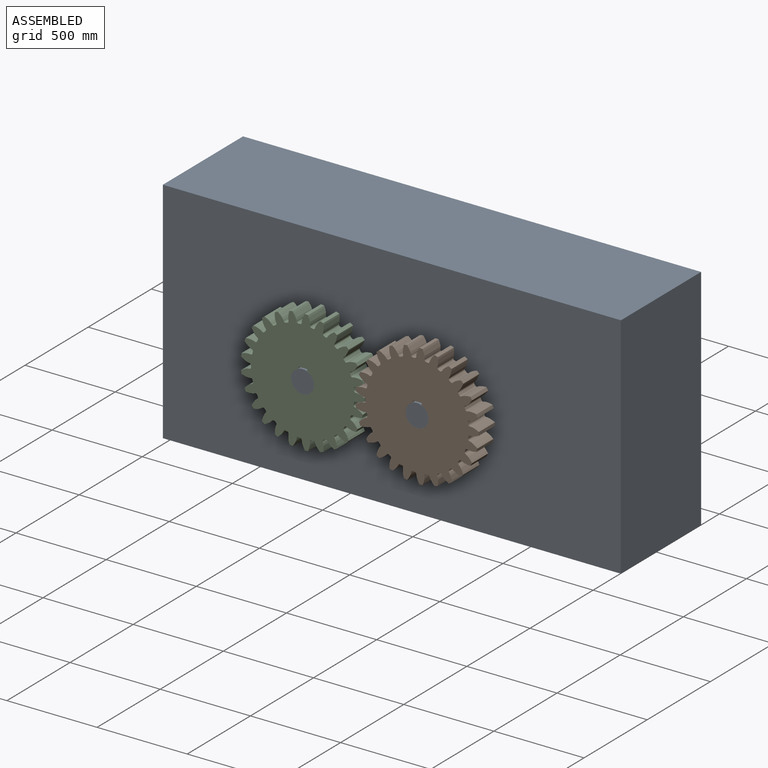
[diagram: assembled view]
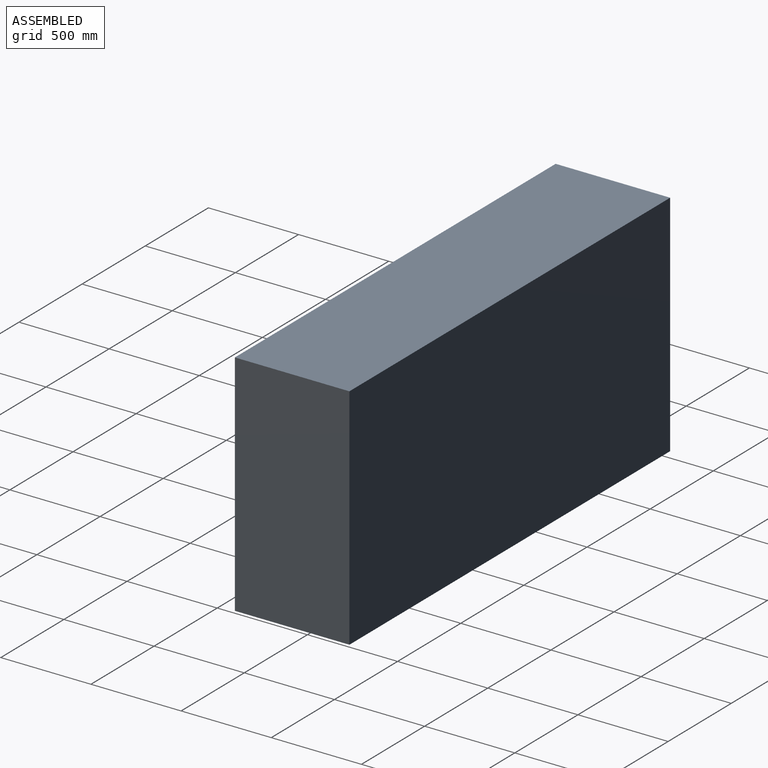
[diagram: assembled view, second angle]
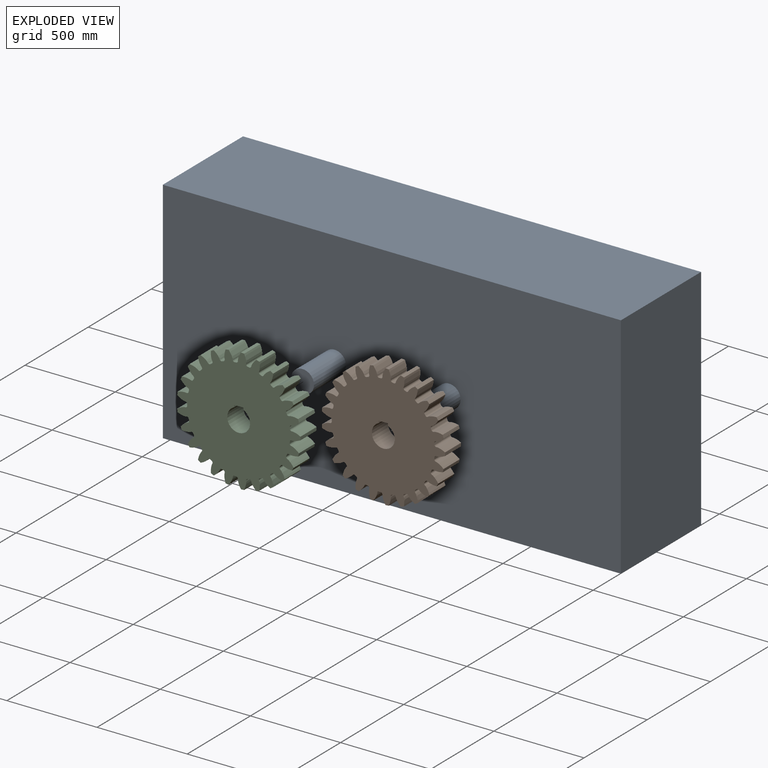
[diagram: exploded view]
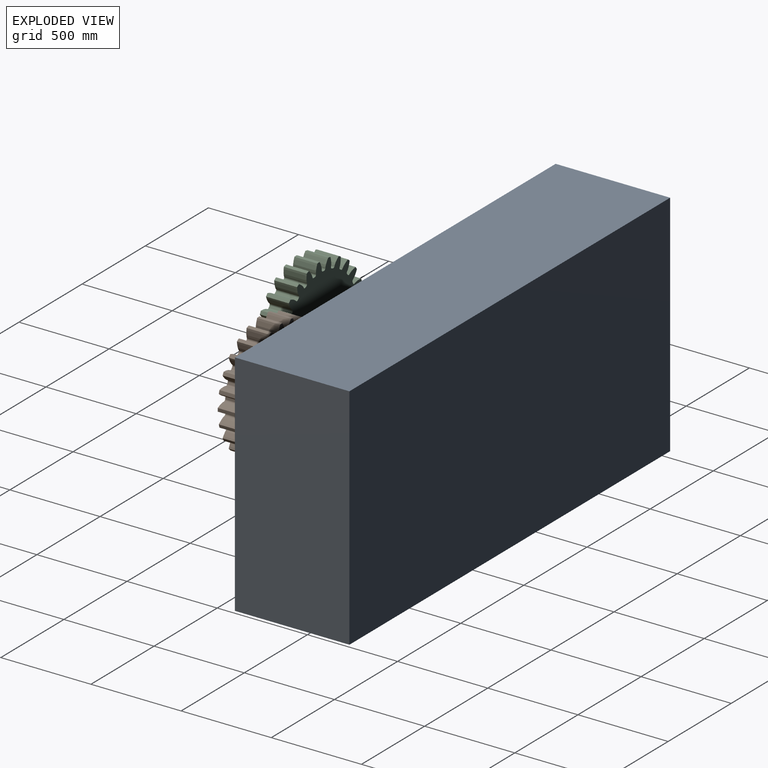
[diagram: exploded view, second angle]
ASSEMBLY  parts=3 mates=2
PART A: 10 faces, bbox 2540x889x1270 mm
  f0: plane 2540x635mm, normal (0,0,-1), area 1612900mm2, adj f1,f3,f4,f5
  f1: plane 1270x635mm, normal (1,0,0), area 806450mm2, adj f0,f2,f4,f5
  f2: plane 2540x635mm, normal (0,0,1), area 1612900mm2, adj f1,f3,f4,f5
  f3: plane 1270x635mm, normal (-1,0,0), area 806450mm2, adj f0,f2,f4,f5
  f4: plane 2540x1270mm, normal (0,-1,0), area 3200464.6mm2, adj f0,f1,f2,f3,f6,f8
  f5: plane 2540x1270mm, normal (0,1,0), area 3225800mm2, adj f0,f1,f2,f3
  f6: cylinder r=63.5mm len=254mm, axis (0,1,0), area 101341.5mm2, adj f4,f7
  f7: plane 127x127mm, normal (0,-1,0), area 12667.7mm2, adj f6
  f8: cylinder r=63.5mm len=254mm, axis (0,1,0), area 101341.5mm2, adj f4,f9
  f9: plane 127x127mm, normal (0,-1,0), area 12667.7mm2, adj f8
PART B: 156 faces, bbox 684.2x127x685.5 mm
  f0: extruded ~127x48.95mm, area 6540.1mm2, adj f103,f104,f105,f106
  f1: cylinder r=285.75mm len=127mm, axis (0,1,0), area 1225.1mm2, adj f104,f105,f106,f107
  f2: extruded ~127x43.98mm, area 6540.1mm2, adj f3,f104,f105,f107
  f3: cylinder r=342.9mm len=127mm, axis (0,1,0), area 2317.9mm2, adj f2,f4,f104,f105
  f4: extruded ~127x50.84mm, area 6540.1mm2, adj f3,f104,f105,f108
  f5: cylinder r=285.75mm len=127mm, axis (0,1,0), area 1225.1mm2, adj f104,f105,f108,f109
  f6: extruded ~127x36.25mm, area 6540.1mm2, adj f7,f104,f105,f109
  f7: cylinder r=342.9mm len=127mm, axis (0,1,0), area 2317.9mm2, adj f6,f8,f104,f105
  f8: extruded ~127x49.54mm, area 6540.1mm2, adj f7,f104,f105,f110
  f9: cylinder r=285.75mm len=127mm, axis (0,1,0), area 1225.1mm2, adj f104,f105,f110,f111
  f10: extruded ~127x43.56mm, area 6540.1mm2, adj f11,f104,f105,f111
  f11: cylinder r=342.9mm len=127mm, axis (0,1,0), area 2317.9mm2, adj f10,f12,f104,f105
  f12: extruded ~127x45.12mm, area 6540.1mm2, adj f11,f104,f105,f112
  f13: cylinder r=285.75mm len=127mm, axis (0,1,0), area 1225.1mm2, adj f104,f105,f112,f113
  f14: extruded ~127x48.72mm, area 6540.1mm2, adj f15,f104,f105,f113
  f15: cylinder r=342.9mm len=127mm, axis (0,1,0), area 2317.9mm2, adj f14,f16,f104,f105
  f16: extruded ~127x37.87mm, area 6540.1mm2, adj f15,f104,f105,f114
  f17: cylinder r=285.75mm len=127mm, axis (0,1,0), area 1225.1mm2, adj f104,f105,f114,f115
  f18: extruded ~127x50.81mm, area 6540.1mm2, adj f19,f104,f105,f115
  f19: cylinder r=342.9mm len=127mm, axis (0,1,0), area 2317.9mm2, adj f18,f20,f104,f105
  f20: extruded ~127x42.29mm, area 6540.1mm2, adj f19,f104,f105,f116
  f21: cylinder r=285.75mm len=127mm, axis (0,1,0), area 1225.1mm2, adj f104,f105,f116,f117
  f22: extruded ~127x49.72mm, area 6540.1mm2, adj f23,f104,f105,f117
  f23: cylinder r=342.9mm len=127mm, axis (0,1,0), area 2317.9mm2, adj f22,f24,f104,f105
  f24: extruded ~127x47.98mm, area 6540.1mm2, adj f23,f104,f105,f118
  f25: cylinder r=285.75mm len=127mm, axis (0,1,0), area 1225.1mm2, adj f104,f105,f118,f119
  f26: extruded ~127x45.49mm, area 6540.1mm2, adj f27,f104,f105,f119
  f27: cylinder r=342.9mm len=127mm, axis (0,1,0), area 2317.9mm2, adj f26,f28,f104,f105
  f28: extruded ~127x50.66mm, area 6540.1mm2, adj f27,f104,f105,f120
  f29: cylinder r=285.75mm len=127mm, axis (0,1,0), area 1225.1mm2, adj f104,f105,f120,f121
  f30: extruded ~127x38.42mm, area 6540.1mm2, adj f31,f104,f105,f121
  f31: cylinder r=342.9mm len=127mm, axis (0,1,0), area 2317.9mm2, adj f30,f32,f104,f105
  f32: extruded ~127x50.16mm, area 6540.1mm2, adj f31,f104,f105,f122
  f33: cylinder r=285.75mm len=127mm, axis (0,1,0), area 1225.1mm2, adj f104,f105,f122,f123
  f34: extruded ~127x41.82mm, area 6540.1mm2, adj f35,f104,f105,f123
  f35: cylinder r=342.9mm len=127mm, axis (0,1,0), area 2317.9mm2, adj f34,f36,f104,f105
  f36: extruded ~127x46.5mm, area 6540.1mm2, adj f35,f104,f105,f124
  f37: cylinder r=285.75mm len=127mm, axis (0,1,0), area 1225.1mm2, adj f104,f105,f124,f125
  f38: extruded ~127x47.7mm, area 6540.1mm2, adj f39,f104,f105,f125
  f39: cylinder r=342.9mm len=127mm, axis (0,1,0), area 2317.9mm2, adj f38,f40,f104,f105
  f40: extruded ~127x39.93mm, area 6540.1mm2, adj f39,f104,f105,f126
  f41: cylinder r=285.75mm len=127mm, axis (0,1,0), area 1225.1mm2, adj f104,f105,f126,f127
  f42: extruded ~127x50.59mm, area 6540.1mm2, adj f43,f104,f105,f127
  f43: cylinder r=342.9mm len=127mm, axis (0,1,0), area 2317.9mm2, adj f42,f44,f104,f105
  f44: extruded ~127x40.43mm, area 6540.1mm2, adj f43,f104,f105,f128
  f45: cylinder r=285.75mm len=127mm, axis (0,1,0), area 1225.1mm2, adj f104,f105,f128,f129
  f46: extruded ~127x50.29mm, area 6540.1mm2, adj f47,f104,f105,f129
  f47: cylinder r=342.9mm len=127mm, axis (0,1,0), area 2317.9mm2, adj f46,f48,f104,f105
  f48: extruded ~127x46.83mm, area 6540.1mm2, adj f47,f104,f105,f130
  f49: cylinder r=285.75mm len=127mm, axis (0,1,0), area 1225.1mm2, adj f104,f105,f130,f131
  f50: extruded ~127x46.83mm, area 6540.1mm2, adj f51,f104,f105,f131
  f51: cylinder r=342.9mm len=127mm, axis (0,1,0), area 2317.9mm2, adj f50,f52,f104,f105
  f52: extruded ~127x50.29mm, area 6540.1mm2, adj f51,f104,f105,f132
  f53: cylinder r=285.75mm len=127mm, axis (0,1,0), area 1225.1mm2, adj f104,f105,f132,f133
  f54: extruded ~127x40.43mm, area 6540.1mm2, adj f55,f104,f105,f133
  f55: cylinder r=342.9mm len=127mm, axis (0,1,0), area 2317.9mm2, adj f54,f56,f104,f105
  f56: extruded ~127x50.59mm, area 6540.1mm2, adj f55,f104,f105,f134
  f57: cylinder r=285.75mm len=127mm, axis (0,1,0), area 1225.1mm2, adj f104,f105,f134,f135
  f58: extruded ~127x39.93mm, area 6540.1mm2, adj f59,f104,f105,f135
  f59: cylinder r=342.9mm len=127mm, axis (0,1,0), area 2317.9mm2, adj f58,f60,f104,f105
  f60: extruded ~127x47.7mm, area 6540.1mm2, adj f59,f104,f105,f136
  f61: cylinder r=285.75mm len=127mm, axis (0,1,0), area 1225.1mm2, adj f104,f105,f136,f137
  f62: extruded ~127x46.5mm, area 6540.1mm2, adj f63,f104,f105,f137
  f63: cylinder r=342.9mm len=127mm, axis (0,1,0), area 2317.9mm2, adj f62,f64,f104,f105
  f64: extruded ~127x41.82mm, area 6540.1mm2, adj f63,f104,f105,f138
  f65: cylinder r=285.75mm len=127mm, axis (0,1,0), area 1225.1mm2, adj f104,f105,f138,f139
  f66: extruded ~127x50.16mm, area 6540.1mm2, adj f67,f104,f105,f139
  f67: cylinder r=342.9mm len=127mm, axis (0,1,0), area 2317.9mm2, adj f66,f68,f104,f105
  f68: extruded ~127x38.42mm, area 6540.1mm2, adj f67,f104,f105,f140
  f69: cylinder r=285.75mm len=127mm, axis (0,1,0), area 1225.1mm2, adj f104,f105,f140,f141
  f70: extruded ~127x50.66mm, area 6540.1mm2, adj f71,f104,f105,f141
  f71: cylinder r=342.9mm len=127mm, axis (0,1,0), area 2317.9mm2, adj f70,f72,f104,f105
  f72: extruded ~127x45.49mm, area 6540.1mm2, adj f71,f104,f105,f142
  f73: cylinder r=285.75mm len=127mm, axis (0,1,0), area 1225.1mm2, adj f104,f105,f142,f143
  f74: extruded ~127x47.98mm, area 6540.1mm2, adj f75,f104,f105,f143
  f75: cylinder r=342.9mm len=127mm, axis (0,1,0), area 2317.9mm2, adj f74,f76,f104,f105
  f76: extruded ~127x49.72mm, area 6540.1mm2, adj f75,f104,f105,f144
  f77: cylinder r=285.75mm len=127mm, axis (0,1,0), area 1225.1mm2, adj f104,f105,f144,f145
  f78: extruded ~127x42.29mm, area 6540.1mm2, adj f79,f104,f105,f145
  f79: cylinder r=342.9mm len=127mm, axis (0,1,0), area 2317.9mm2, adj f78,f80,f104,f105
  f80: extruded ~127x50.81mm, area 6540.1mm2, adj f79,f104,f105,f146
  f81: cylinder r=285.75mm len=127mm, axis (0,1,0), area 1225.1mm2, adj f104,f105,f146,f147
  f82: extruded ~127x37.87mm, area 6540.1mm2, adj f83,f104,f105,f147
  f83: cylinder r=342.9mm len=127mm, axis (0,1,0), area 2317.9mm2, adj f82,f84,f104,f105
  f84: extruded ~127x48.72mm, area 6540.1mm2, adj f83,f104,f105,f148
  f85: cylinder r=285.75mm len=127mm, axis (0,1,0), area 1225.1mm2, adj f104,f105,f148,f149
  f86: extruded ~127x45.12mm, area 6540.1mm2, adj f87,f104,f105,f149
  f87: cylinder r=342.9mm len=127mm, axis (0,1,0), area 2317.9mm2, adj f86,f88,f104,f105
  f88: extruded ~127x43.56mm, area 6540.1mm2, adj f87,f104,f105,f150
  f89: cylinder r=285.75mm len=127mm, axis (0,1,0), area 1225.1mm2, adj f104,f105,f150,f151
  f90: extruded ~127x49.54mm, area 6540.1mm2, adj f91,f104,f105,f151
  f91: cylinder r=342.9mm len=127mm, axis (0,1,0), area 2317.9mm2, adj f90,f92,f104,f105
  f92: extruded ~127x36.25mm, area 6540.1mm2, adj f91,f104,f105,f152
  f93: cylinder r=285.75mm len=127mm, axis (0,1,0), area 1225.1mm2, adj f104,f105,f152,f153
  f94: extruded ~127x50.84mm, area 6540.1mm2, adj f95,f104,f105,f153
  f95: cylinder r=342.9mm len=127mm, axis (0,1,0), area 2317.9mm2, adj f94,f96,f104,f105
  f96: extruded ~127x43.98mm, area 6540.1mm2, adj f95,f104,f105,f154
  f97: cylinder r=285.75mm len=127mm, axis (0,1,0), area 1225.1mm2, adj f104,f105,f154,f155
  f98: extruded ~127x48.95mm, area 6540.1mm2, adj f103,f104,f105,f155
  f99: plane 127x11.65mm, normal (-1,0,0), area 1479.7mm2, adj f100,f102,f104,f105
  f100: cylinder r=63.5mm len=127mm, axis (0,1,0), area 44033.4mm2, adj f99,f101,f104,f105
  f101: plane 127x11.65mm, normal (1,0,0), area 1479.7mm2, adj f100,f102,f104,f105
  f102: plane 127x50.8mm, normal (0,0,-1), area 6451.6mm2, adj f99,f101,f104,f105
  f103: cylinder r=342.9mm len=127mm, axis (0,1,0), area 2317.9mm2, adj f0,f98,f104,f105
  f104: plane 685.5x684.2mm, normal (0,-1,0), area 298847.2mm2, adj f0,f1,f2,f3,f4,f5,f6,f7
  f105: plane 685.5x684.2mm, normal (0,1,0), area 298847.2mm2, adj f0,f1,f2,f3,f4,f5,f6,f7
  f106: cylinder r=9.13mm len=127mm, axis (0,1,0), area 1783.5mm2, adj f0,f1,f104,f105
  f107: cylinder r=9.13mm len=127mm, axis (0,1,0), area 1783.5mm2, adj f1,f2,f104,f105
  f108: cylinder r=9.13mm len=127mm, axis (0,1,0), area 1783.5mm2, adj f4,f5,f104,f105
  f109: cylinder r=9.13mm len=127mm, axis (0,1,0), area 1783.5mm2, adj f5,f6,f104,f105
  f110: cylinder r=9.13mm len=127mm, axis (0,1,0), area 1783.5mm2, adj f8,f9,f104,f105
  f111: cylinder r=9.13mm len=127mm, axis (0,1,0), area 1783.5mm2, adj f9,f10,f104,f105
  f112: cylinder r=9.13mm len=127mm, axis (0,1,0), area 1783.5mm2, adj f12,f13,f104,f105
  f113: cylinder r=9.13mm len=127mm, axis (0,1,0), area 1783.5mm2, adj f13,f14,f104,f105
  f114: cylinder r=9.13mm len=127mm, axis (0,1,0), area 1783.5mm2, adj f16,f17,f104,f105
  f115: cylinder r=9.13mm len=127mm, axis (0,1,0), area 1783.5mm2, adj f17,f18,f104,f105
  f116: cylinder r=9.13mm len=127mm, axis (0,1,0), area 1783.5mm2, adj f20,f21,f104,f105
  f117: cylinder r=9.13mm len=127mm, axis (0,1,0), area 1783.5mm2, adj f21,f22,f104,f105
  f118: cylinder r=9.13mm len=127mm, axis (0,1,0), area 1783.5mm2, adj f24,f25,f104,f105
  f119: cylinder r=9.13mm len=127mm, axis (0,1,0), area 1783.5mm2, adj f25,f26,f104,f105
  f120: cylinder r=9.13mm len=127mm, axis (0,1,0), area 1783.5mm2, adj f28,f29,f104,f105
  f121: cylinder r=9.13mm len=127mm, axis (0,1,0), area 1783.5mm2, adj f29,f30,f104,f105
  f122: cylinder r=9.13mm len=127mm, axis (0,1,0), area 1783.5mm2, adj f32,f33,f104,f105
  f123: cylinder r=9.13mm len=127mm, axis (0,1,0), area 1783.5mm2, adj f33,f34,f104,f105
  f124: cylinder r=9.13mm len=127mm, axis (0,1,0), area 1783.5mm2, adj f36,f37,f104,f105
  f125: cylinder r=9.13mm len=127mm, axis (0,1,0), area 1783.5mm2, adj f37,f38,f104,f105
  f126: cylinder r=9.13mm len=127mm, axis (0,1,0), area 1783.5mm2, adj f40,f41,f104,f105
  f127: cylinder r=9.13mm len=127mm, axis (0,1,0), area 1783.5mm2, adj f41,f42,f104,f105
  f128: cylinder r=9.13mm len=127mm, axis (0,1,0), area 1783.5mm2, adj f44,f45,f104,f105
  f129: cylinder r=9.13mm len=127mm, axis (0,1,0), area 1783.5mm2, adj f45,f46,f104,f105
  f130: cylinder r=9.13mm len=127mm, axis (0,1,0), area 1783.5mm2, adj f48,f49,f104,f105
  f131: cylinder r=9.13mm len=127mm, axis (0,1,0), area 1783.5mm2, adj f49,f50,f104,f105
  f132: cylinder r=9.13mm len=127mm, axis (0,1,0), area 1783.5mm2, adj f52,f53,f104,f105
  f133: cylinder r=9.13mm len=127mm, axis (0,1,0), area 1783.5mm2, adj f53,f54,f104,f105
  f134: cylinder r=9.13mm len=127mm, axis (0,1,0), area 1783.5mm2, adj f56,f57,f104,f105
  f135: cylinder r=9.13mm len=127mm, axis (0,1,0), area 1783.5mm2, adj f57,f58,f104,f105
  f136: cylinder r=9.13mm len=127mm, axis (0,1,0), area 1783.5mm2, adj f60,f61,f104,f105
  f137: cylinder r=9.13mm len=127mm, axis (0,1,0), area 1783.5mm2, adj f61,f62,f104,f105
  f138: cylinder r=9.13mm len=127mm, axis (0,1,0), area 1783.5mm2, adj f64,f65,f104,f105
  f139: cylinder r=9.13mm len=127mm, axis (0,1,0), area 1783.5mm2, adj f65,f66,f104,f105
  f140: cylinder r=9.13mm len=127mm, axis (0,1,0), area 1783.5mm2, adj f68,f69,f104,f105
  f141: cylinder r=9.13mm len=127mm, axis (0,1,0), area 1783.5mm2, adj f69,f70,f104,f105
  f142: cylinder r=9.13mm len=127mm, axis (0,1,0), area 1783.5mm2, adj f72,f73,f104,f105
  f143: cylinder r=9.13mm len=127mm, axis (0,1,0), area 1783.5mm2, adj f73,f74,f104,f105
  f144: cylinder r=9.13mm len=127mm, axis (0,1,0), area 1783.5mm2, adj f76,f77,f104,f105
  f145: cylinder r=9.13mm len=127mm, axis (0,1,0), area 1783.5mm2, adj f77,f78,f104,f105
  f146: cylinder r=9.13mm len=127mm, axis (0,1,0), area 1783.5mm2, adj f80,f81,f104,f105
  f147: cylinder r=9.13mm len=127mm, axis (0,1,0), area 1783.5mm2, adj f81,f82,f104,f105
  f148: cylinder r=9.13mm len=127mm, axis (0,1,0), area 1783.5mm2, adj f84,f85,f104,f105
  f149: cylinder r=9.13mm len=127mm, axis (0,1,0), area 1783.5mm2, adj f85,f86,f104,f105
  f150: cylinder r=9.13mm len=127mm, axis (0,1,0), area 1783.5mm2, adj f88,f89,f104,f105
  f151: cylinder r=9.13mm len=127mm, axis (0,1,0), area 1783.5mm2, adj f89,f90,f104,f105
  f152: cylinder r=9.13mm len=127mm, axis (0,1,0), area 1783.5mm2, adj f92,f93,f104,f105
  f153: cylinder r=9.13mm len=127mm, axis (0,1,0), area 1783.5mm2, adj f93,f94,f104,f105
  f154: cylinder r=9.13mm len=127mm, axis (0,1,0), area 1783.5mm2, adj f96,f97,f104,f105
  f155: cylinder r=9.13mm len=127mm, axis (0,1,0), area 1783.5mm2, adj f97,f98,f104,f105
PART C: same geometry as B
PLACE A t=(-212.55,-44.21,-72.73)mm fixed
PLACE B t=(104.95,-488.71,-72.73)mm
PLACE C t=(-530.05,-488.71,-72.73)mm
MATE revolute B.f3 <-> A.f8  axis (0,-1,0) through (104.95,-615.71,-72.73)mm
MATE revolute C.f3 <-> A.f6  axis (0,-1,0) through (-530.05,-615.71,-72.73)mm
